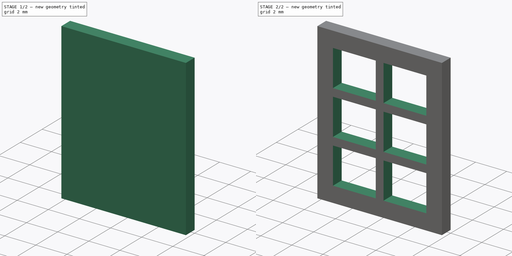
[diagram: build sequence overview — one tinted view per stage of 2, left to right]
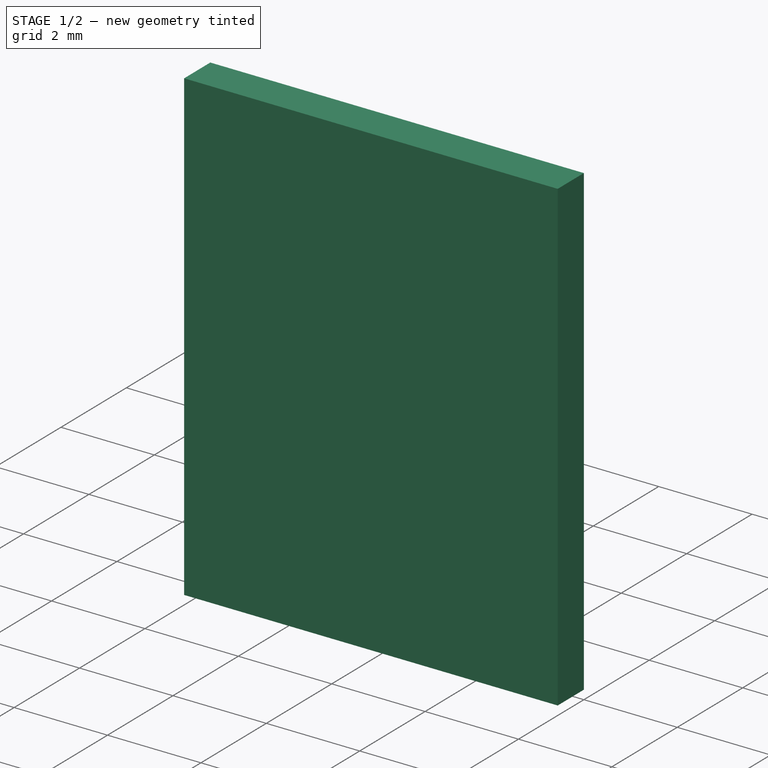
[diagram: stage 1 of 2 — iso view after this stage's code; geometry added in this stage tinted green]
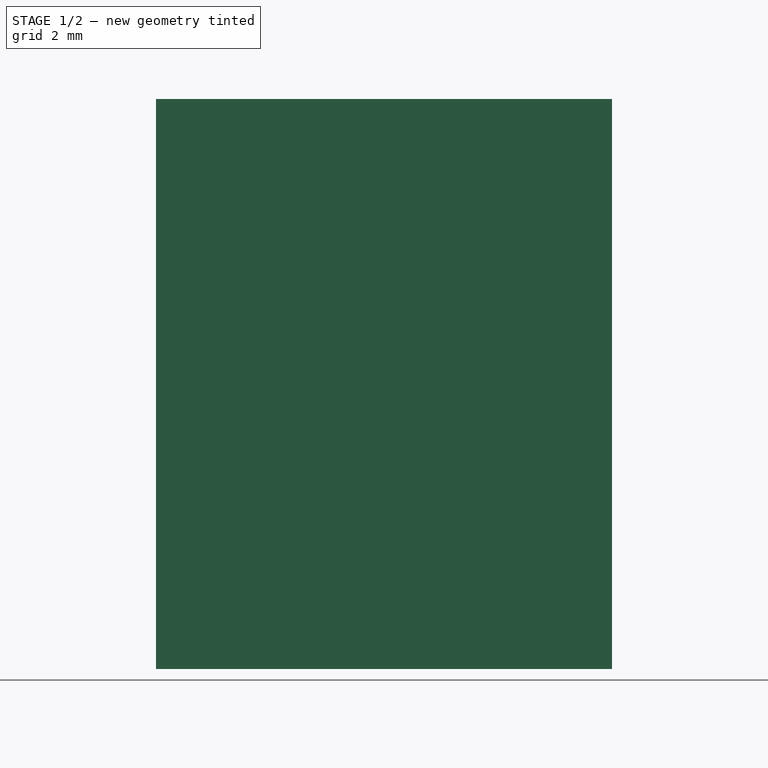
[diagram: stage 1 of 2 — front view after this stage's code; geometry added in this stage tinted green]
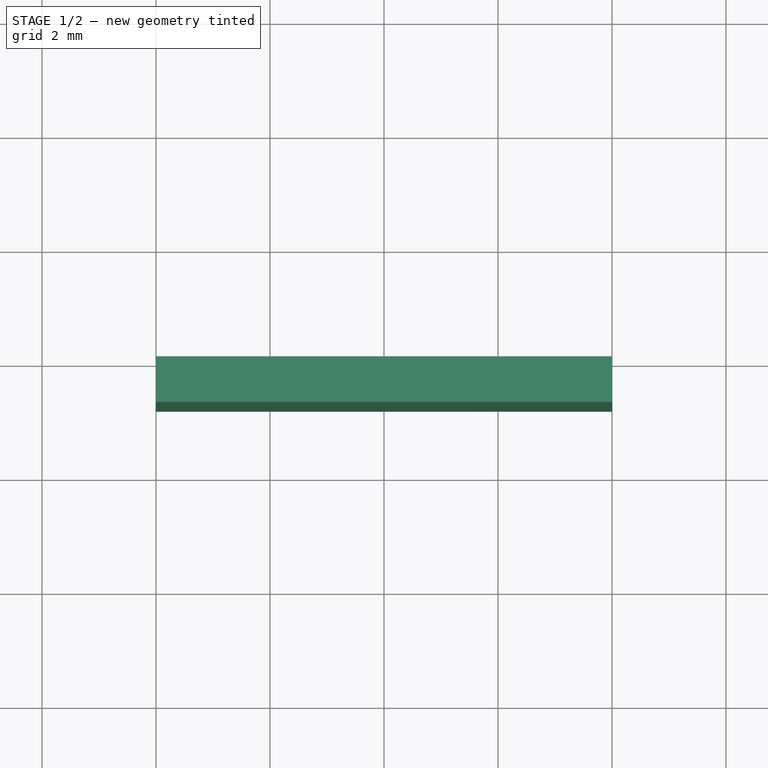
[diagram: stage 1 of 2 — top view after this stage's code; geometry added in this stage tinted green]
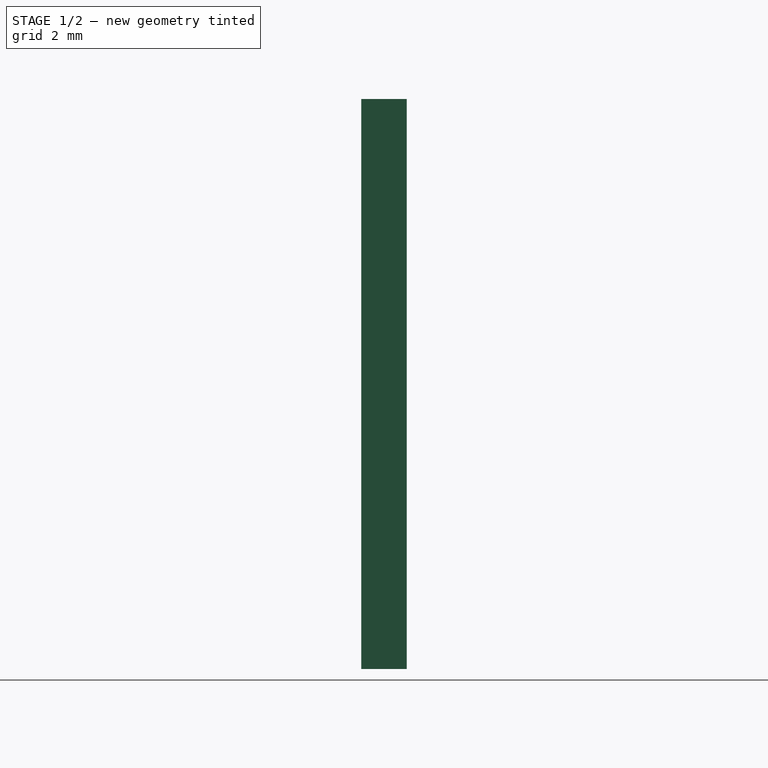
[diagram: stage 1 of 2 — right view after this stage's code; geometry added in this stage tinted green]
FCSTD DOCUMENT  (FreeCAD 0.20R29410 (Git))
Label: second_smallest_window
License: All rights reserved
LicenseURL: http://en.wikipedia.org/wiki/All_rights_reserved
objects: Sketcher::SketchObject×2, PartDesign::Pad×1, PartDesign::Pocket×1, PartDesign::Body×1
note: 7 computed .brp shape members not serialized (recipe doc carries the construction recipe); baked Part::Feature solids carry a one-line shape summary decoded from their .brp

FEATURE [Sketcher::SketchObject] Sketch
  FullyConstrained = true
  MapMode = 5
  Placement = pos=(0,0,0) rot=(1,0,0;1.5708rad)
  Support = -> [XZ_Plane]
  sketch-geometry (6):
    g0: LineSegment StartX=-4 StartY=5 StartZ=0 EndX=4 EndY=5 EndZ=0
    g1: LineSegment StartX=4 StartY=5 StartZ=0 EndX=4 EndY=-5 EndZ=0
    g2: LineSegment StartX=4 StartY=-5 StartZ=0 EndX=-4 EndY=-5 EndZ=0
    g3: LineSegment StartX=-4 StartY=-5 StartZ=0 EndX=-4 EndY=5 EndZ=0
    g4: GeomPoint X=0 Y=5 Z=0
    g5: GeomPoint X=-4 Y=0 Z=0
  constraints (14):
    c: Coincident(g0,g1)
    c: Coincident(g1,g2)
    c: Coincident(g2,g3)
    c: Coincident(g3,g0)
    c: Horizontal(g0)
    c: Horizontal(g2)
    c: Vertical(g1)
    c: Vertical(g3)
    c: DistanceY(g3,g3) = 10
    c: DistanceX(g0,g0) = 8
    c: Symmetric(g0,g0,g4)
    c: Symmetric(g3,g3,g5)
    c: PointOnObject(g5,g-1)
    c: PointOnObject(g4,g-2)
FEATURE [PartDesign::Pad] Pad
  Direction = (0,-1,-2e-16)
  Length = 0.8
  Length2 = 10
  Placement = pos=(0,0,0) rot=(1,0,0;1.5708rad)
  Profile = -> Sketch
  ReferenceAxis = -> Sketch [N_Axis]
  Type = 0
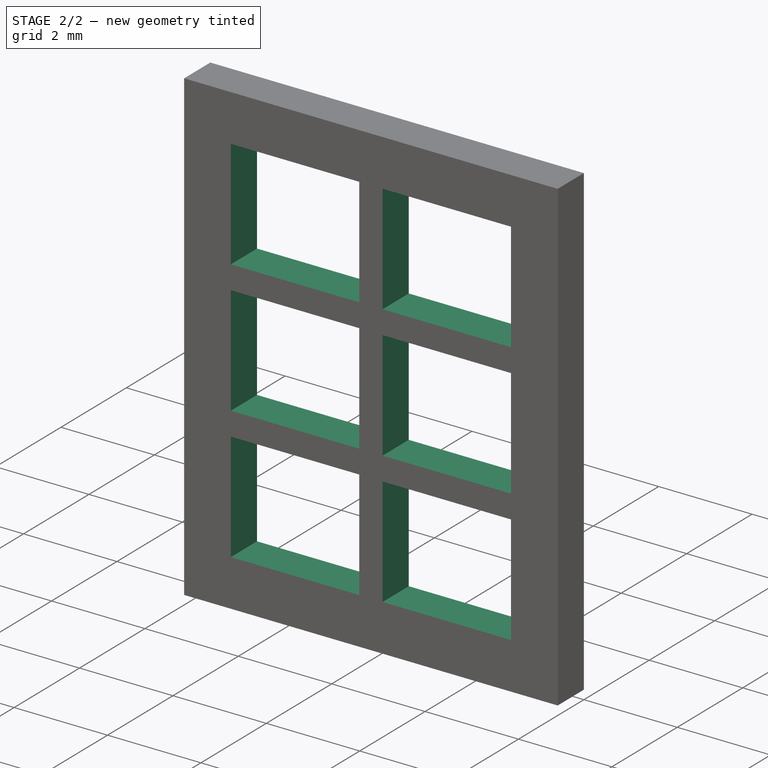
[diagram: stage 2 of 2 — iso view after this stage's code; geometry added in this stage tinted green]
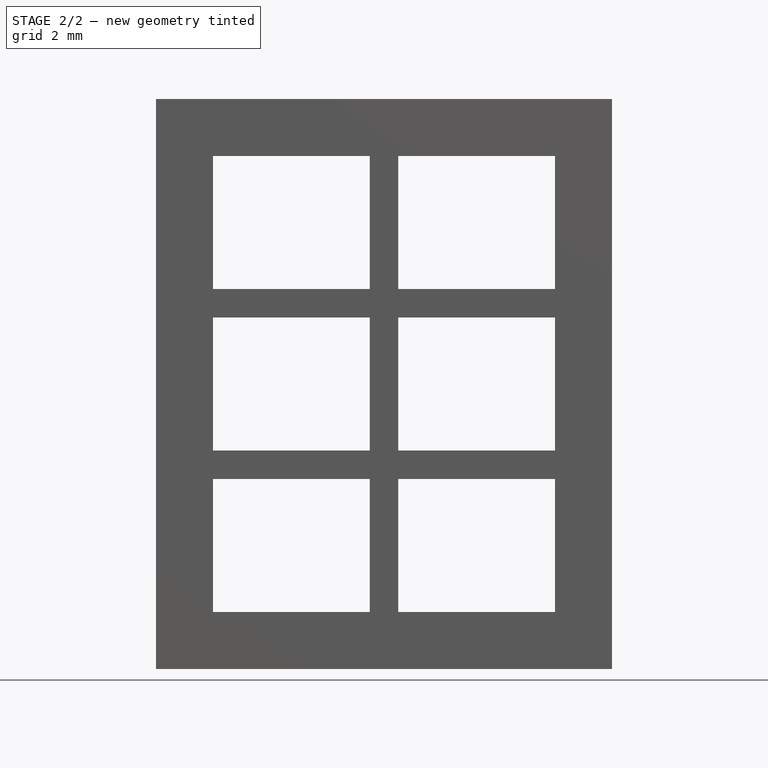
[diagram: stage 2 of 2 — front view after this stage's code; geometry added in this stage tinted green]
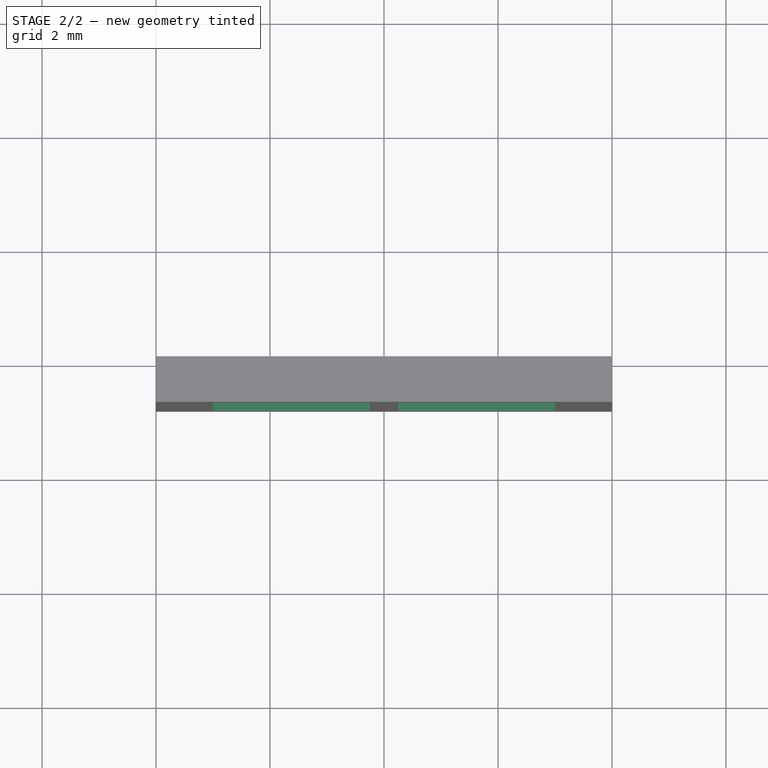
[diagram: stage 2 of 2 — top view after this stage's code; geometry added in this stage tinted green]
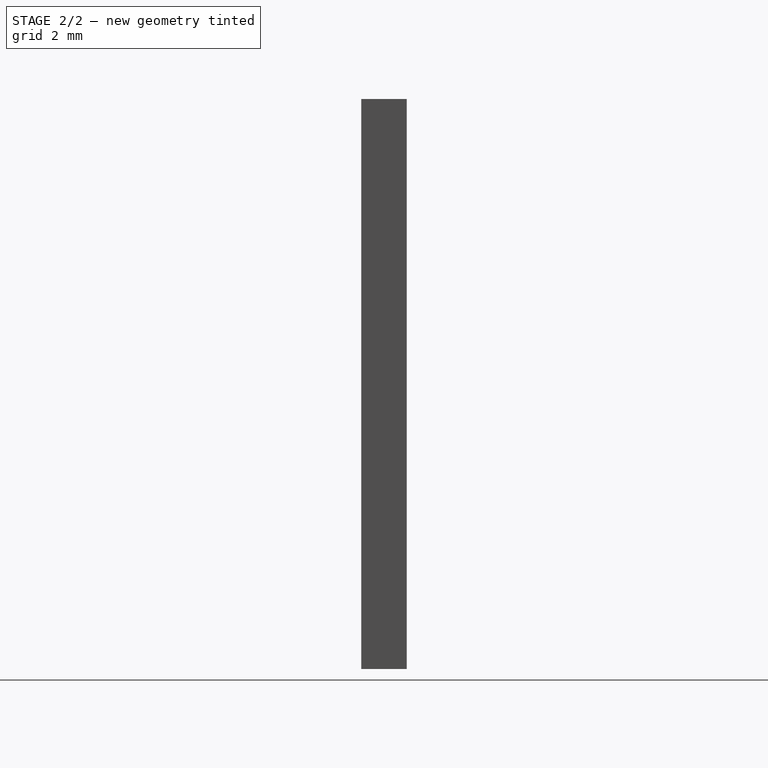
[diagram: stage 2 of 2 — right view after this stage's code; geometry added in this stage tinted green]
FEATURE [Sketcher::SketchObject] Sketch001
  ExternalGeometry = -> [Pad]
  FullyConstrained = false
  MapMode = 5
  Placement = pos=(0,-0.8,-2e-16) rot=(1,0,0;1.5708rad)
  Support = -> [Pad]
  sketch-geometry (35):
    g0: LineSegment StartX=-3 StartY=4 StartZ=0 EndX=-0.25 EndY=4 EndZ=0
    g1: LineSegment StartX=-0.25 StartY=4 StartZ=0 EndX=-0.25 EndY=1.66667 EndZ=0
    g2: LineSegment StartX=-0.25 StartY=1.66667 StartZ=0 EndX=-3 EndY=1.66667 EndZ=0
    g3: LineSegment StartX=-3 StartY=1.66667 StartZ=0 EndX=-3 EndY=4 EndZ=0
    g4: LineSegment StartX=-3 StartY=1.16667 StartZ=0 EndX=-0.25 EndY=1.16667 EndZ=0
    g5: LineSegment StartX=-0.25 StartY=1.16667 StartZ=0 EndX=-0.25 EndY=-1.16667 EndZ=0
    g6: LineSegment StartX=-0.25 StartY=-1.16667 StartZ=0 EndX=-3 EndY=-1.16667 EndZ=0
    g7: LineSegment StartX=-3 StartY=-1.16667 StartZ=0 EndX=-3 EndY=1.16667 EndZ=0
    g8: LineSegment StartX=-3 StartY=-1.66667 StartZ=0 EndX=-0.25 EndY=-1.66667 EndZ=0
    g9: LineSegment StartX=-0.25 StartY=-1.66667 StartZ=0 EndX=-0.25 EndY=-4 EndZ=0
    g10: LineSegment StartX=-0.25 StartY=-4 StartZ=0 EndX=-3 EndY=-4 EndZ=0
    g11: LineSegment StartX=-3 StartY=-4 StartZ=0 EndX=-3 EndY=-1.66667 EndZ=0
    g12: LineSegment StartX=-3 StartY=1.66667 StartZ=0 EndX=-3 EndY=1.16667 EndZ=0
    g13: LineSegment StartX=-3 StartY=-1.16667 StartZ=0 EndX=-3 EndY=-1.66667 EndZ=0
    g14: LineSegment StartX=0.25 StartY=4 StartZ=0 EndX=3 EndY=4 EndZ=0
    g15: LineSegment StartX=3 StartY=4 StartZ=0 EndX=3 EndY=1.66667 EndZ=0
    g16: LineSegment StartX=3 StartY=1.66667 StartZ=0 EndX=0.25 EndY=1.66667 EndZ=0
    g17: LineSegment StartX=0.25 StartY=1.66667 StartZ=0 EndX=0.25 EndY=4 EndZ=0
    g18: LineSegment StartX=0.25 StartY=1.16667 StartZ=0 EndX=3 EndY=1.16667 EndZ=0
    g19: LineSegment StartX=3 StartY=1.16667 StartZ=0 EndX=3 EndY=-1.16667 EndZ=0
    g20: LineSegment StartX=3 StartY=-1.16667 StartZ=0 EndX=0.25 EndY=-1.16667 EndZ=0
    g21: LineSegment StartX=0.25 StartY=-1.16667 StartZ=0 EndX=0.25 EndY=1.16667 EndZ=0
    g22: LineSegment StartX=0.25 StartY=-1.66667 StartZ=0 EndX=3 EndY=-1.66667 EndZ=0
    g23: LineSegment StartX=3 StartY=-1.66667 StartZ=0 EndX=3 EndY=-4 EndZ=0
    g24: LineSegment StartX=3 StartY=-4 StartZ=0 EndX=0.25 EndY=-4 EndZ=0
    g25: LineSegment StartX=0.25 StartY=-4 StartZ=0 EndX=0.25 EndY=-1.66667 EndZ=0
    g26: LineSegment StartX=0.25 StartY=1.66667 StartZ=0 EndX=0.25 EndY=1.16667 EndZ=0
    g27: LineSegment StartX=0.25 StartY=-1.16667 StartZ=0 EndX=0.25 EndY=-1.66667 EndZ=0
    g28: LineSegment StartX=-0.25 StartY=4 StartZ=0 EndX=0.25 EndY=4 EndZ=0
    g29: GeomPoint X=0 Y=4 Z=0
    g30: GeomPoint X=-0.25 Y=0 Z=0
    g31: LineSegment StartX=3 StartY=1.66667 StartZ=0 EndX=3 EndY=1.16667 EndZ=0
    g32: LineSegment StartX=3 StartY=-1.16667 StartZ=0 EndX=3 EndY=-1.47521 EndZ=0
    g33: LineSegment StartX=-0.25 StartY=1.66667 StartZ=0 EndX=-0.25 EndY=1.16667 EndZ=0
    g34: LineSegment StartX=-0.25 StartY=-1.16667 StartZ=0 EndX=-0.25 EndY=-1.66667 EndZ=0
  constraints (92):
    c: Coincident(g0,g1)
    c: Coincident(g1,g2)
    c: Coincident(g2,g3)
    c: Coincident(g3,g0)
    c: Horizontal(g0)
    c: Horizontal(g2)
    c: Vertical(g1)
    c: Vertical(g3)
    c: Coincident(g4,g5)
    c: Coincident(g5,g6)
    c: Coincident(g6,g7)
    c: Coincident(g7,g4)
    c: Horizontal(g4)
    c: Horizontal(g6)
    c: Vertical(g5)
    c: Vertical(g7)
    c: Coincident(g8,g9)
    c: Coincident(g9,g10)
    c: Coincident(g10,g11)
    c: Coincident(g11,g8)
    c: Horizontal(g8)
    c: Horizontal(g10)
    c: Vertical(g9)
    c: Vertical(g11)
    c: DistanceY(g4,g1) = 0.5
    c: DistanceY(g8,g5) = 0.5
    c: Coincident(g12,g2)
    c: Coincident(g12,g4)
    c: Vertical(g12)
    c: Coincident(g13,g6)
    c: Coincident(g13,g8)
    c: Vertical(g13)
    c: Coincident(g14,g15)
    c: Coincident(g15,g16)
    c: Coincident(g16,g17)
    c: Coincident(g17,g14)
    c: Horizontal(g14)
    c: Horizontal(g16)
    c: Vertical(g15)
    c: Vertical(g17)
    c: Coincident(g18,g19)
    c: Coincident(g19,g20)
    c: Coincident(g20,g21)
    c: Coincident(g21,g18)
    c: Horizontal(g18)
    c: Horizontal(g20)
    c: Vertical(g19)
    c: Vertical(g21)
    c: Coincident(g22,g23)
    c: Coincident(g23,g24)
    c: Coincident(g24,g25)
    c: Coincident(g25,g22)
    c: Horizontal(g22)
    c: Horizontal(g24)
    c: Vertical(g23)
    c: Vertical(g25)
    c: DistanceY(g18,g15) = 0.5
    c: DistanceY(g22,g19) = 0.5
    c: Coincident(g26,g16)
    c: Coincident(g26,g18)
    c: Vertical(g26)
    c: Coincident(g27,g20)
    c: Coincident(g27,g22)
    c: Vertical(g27)
    c: Coincident(g28,g0)
    c: Coincident(g28,g14)
    c: Horizontal(g28)
    c: Symmetric(g28,g28,g29)
    c: Symmetric(g5,g5,g30)
    c: PointOnObject(g29,g-2)
    c: PointOnObject(g30,g-1)
    c: Equal(g3,g7)
    c: Equal(g7,g11)
    c: Equal(g11,g25)
    c: Equal(g25,g21)
    c: Equal(g21,g17)
    c: DistanceX(g-3,g0) = 1
    c: DistanceX(g14,g-3) = 1
    c: Coincident(g31,g15)
    c: Coincident(g31,g18)
    c: Coincident(g32,g19)
    c: PointOnObject(g32,g23)
    c: Coincident(g33,g1)
    c: Coincident(g33,g4)
    c: Vertical(g33)
    c: Coincident(g34,g5)
    c: Coincident(g34,g8)
    c: Vertical(g34)
    c: Vertical(g32)
    c: Vertical(g31)
    c: DistanceY(g14,g-3) = 1
    c: DistanceX(g9,g24) = 0.5
FEATURE [PartDesign::Pocket] Pocket
  BaseFeature = -> Pad
  Direction = (0,1,2e-16)
  Length = 5
  Length2 = 5
  Placement = pos=(0,0,0) rot=(1,0,0;1.5708rad)
  Profile = -> Sketch001
  ReferenceAxis = -> Sketch001 [N_Axis]
  Type = 0
FEATURE [PartDesign::Body] Body
  Group = -> [Sketch,Pad,Sketch001,Pocket]
  Origin = -> Origin
  Tip = -> Pocket
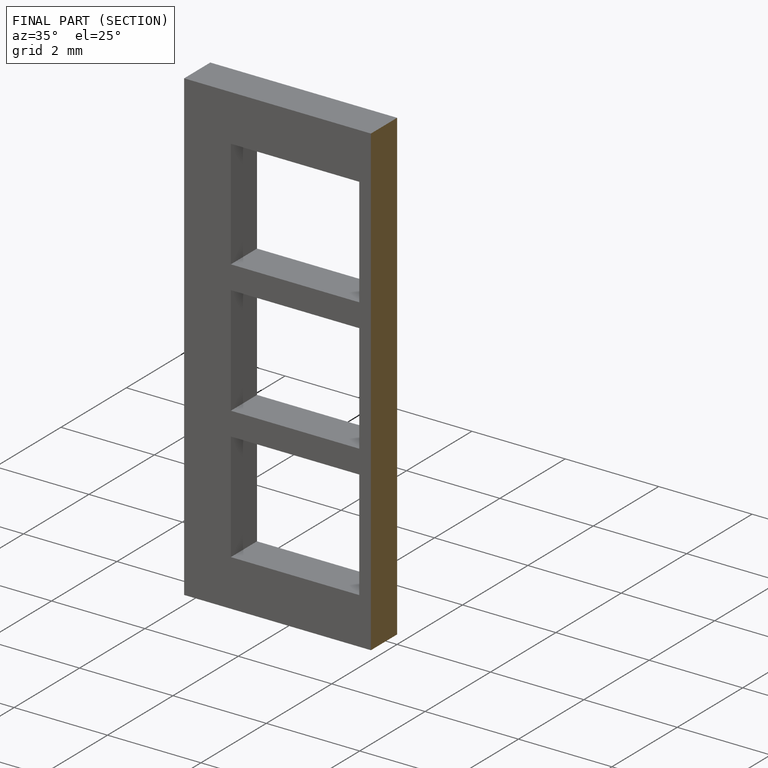
[diagram: finished part — half-section view (interior)]
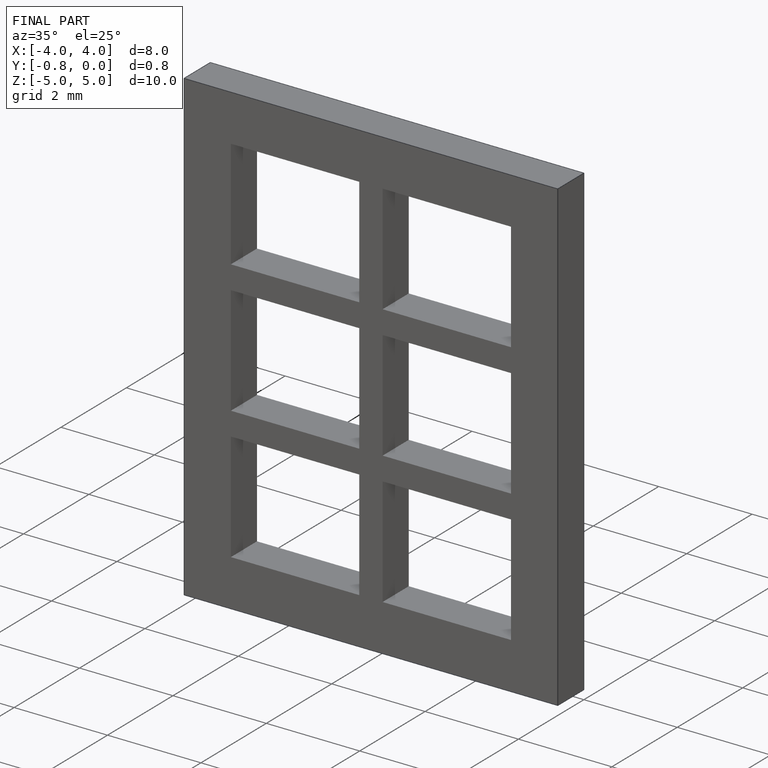
[diagram: finished part — iso view with bounding-box wireframe]
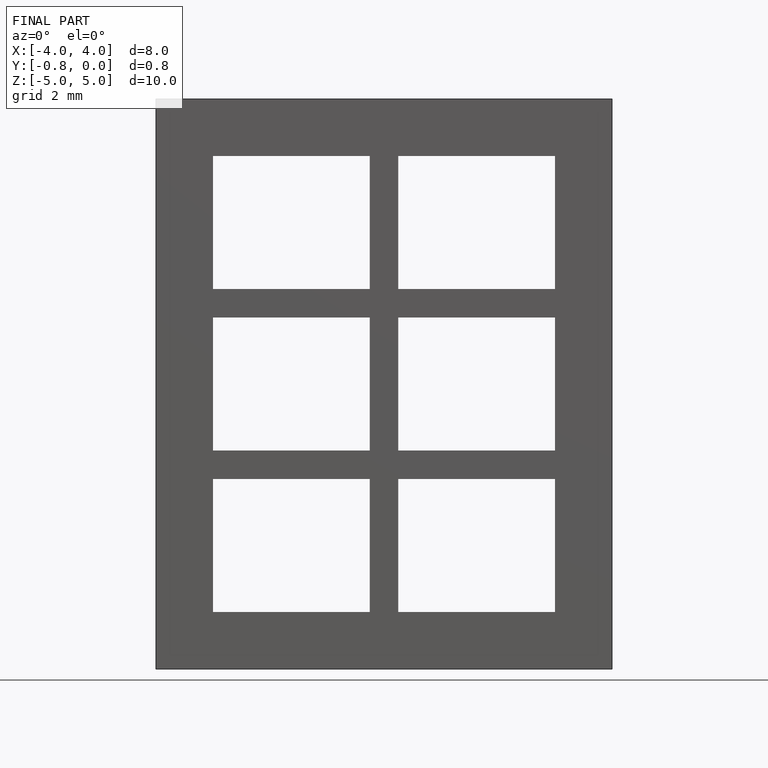
[diagram: finished part — front view with bounding-box wireframe]
